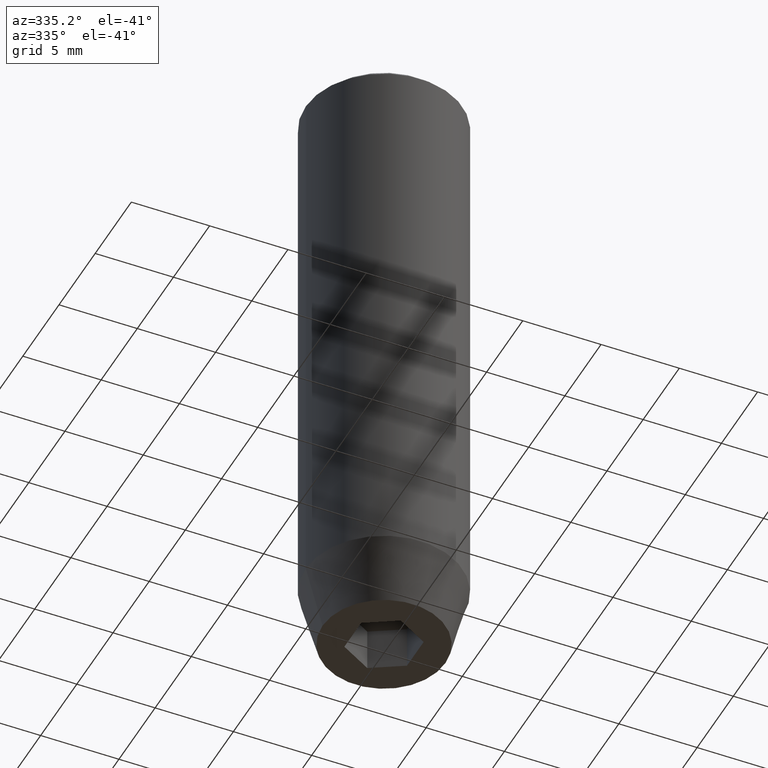
[diagram: clean part render]
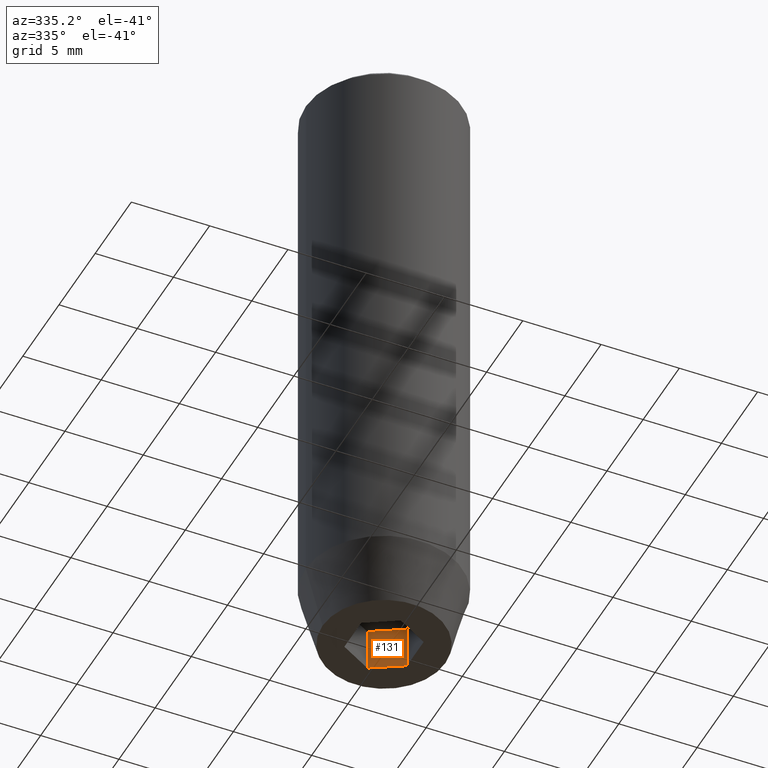
[diagram: same view with one face highlighted and labeled with its STEP entity id]
A machine part, auxiliary view. The second image highlights one B-rep face of the part: STEP entity #131.
In plain terms, the highlighted planar face has unit normal (0.5, 0.866, -0).
Its self-contained STEP definition (entity closure, byte-faithful):
#15 = ORIENTED_EDGE ( 'NONE', *, *, #301, .T. ) ;
#16 = CARTESIAN_POINT ( 'NONE',  ( 2.000000000000000888, 1.154700538379251462, -40.00000000000000000 ) ) ;
#42 = LINE ( 'NONE', #356, #123 ) ;
#62 = DIRECTION ( 'NONE',  ( 0.8660254037844385966, -0.5000000000000001110, 0.000000000000000000 ) ) ;
#99 = ORIENTED_EDGE ( 'NONE', *, *, #391, .F. ) ;
#101 = EDGE_CURVE ( 'NONE', #265, #585, #371, .T. ) ;
#105 = AXIS2_PLACEMENT_3D ( 'NONE', #299, #156, #475 ) ;
#119 = VECTOR ( 'NONE', #62, 1000.000000000000000 ) ;
#123 = VECTOR ( 'NONE', #164, 1000.000000000000000 ) ;
#131 = ADVANCED_FACE ( 'NONE', ( #348 ), #528, .F. ) ;
#151 = DIRECTION ( 'NONE',  ( 0.8660254037844385966, -0.5000000000000001110, 0.000000000000000000 ) ) ;
#156 = DIRECTION ( 'NONE',  ( 0.5000000000000001110, 0.8660254037844385966, -0.000000000000000000 ) ) ;
#164 = DIRECTION ( 'NONE',  ( -0.000000000000000000, -0.000000000000000000, -1.000000000000000000 ) ) ;
#176 = LINE ( 'NONE', #285, #458 ) ;
#179 = VERTEX_POINT ( 'NONE', #434 ) ;
#196 = LINE ( 'NONE', #424, #293 ) ;
#225 = EDGE_LOOP ( 'NONE', ( #236, #366, #99, #15 ) ) ;
#236 = ORIENTED_EDGE ( 'NONE', *, *, #101, .T. ) ;
#265 = VERTEX_POINT ( 'NONE', #445 ) ;
#285 = CARTESIAN_POINT ( 'NONE',  ( 2.000000000000000888, 1.154700538379251462, -37.20000000000000284 ) ) ;
#293 = VECTOR ( 'NONE', #151, 1000.000000000000000 ) ;
#299 = CARTESIAN_POINT ( 'NONE',  ( 1.000000000000000444, 1.732050807568877637, -37.20000000000000284 ) ) ;
#301 = EDGE_CURVE ( 'NONE', #179, #265, #42, .T. ) ;
#326 = EDGE_CURVE ( 'NONE', #453, #585, #176, .T. ) ;
#330 = CARTESIAN_POINT ( 'NONE',  ( 2.000000000000000888, 1.154700538379251462, -37.20000000000000284 ) ) ;
#348 = FACE_OUTER_BOUND ( 'NONE', #225, .T. ) ;
#356 = CARTESIAN_POINT ( 'NONE',  ( 0.000000000000000000, 2.309401076758503812, -37.20000000000000284 ) ) ;
#366 = ORIENTED_EDGE ( 'NONE', *, *, #326, .F. ) ;
#371 = LINE ( 'NONE', #412, #119 ) ;
#391 = EDGE_CURVE ( 'NONE', #179, #453, #196, .T. ) ;
#412 = CARTESIAN_POINT ( 'NONE',  ( 1.000000000000000444, 1.732050807568877637, -40.00000000000000000 ) ) ;
#424 = CARTESIAN_POINT ( 'NONE',  ( 1.000000000000000444, 1.732050807568877637, -37.20000000000000284 ) ) ;
#434 = CARTESIAN_POINT ( 'NONE',  ( 0.000000000000000000, 2.309401076758503812, -37.20000000000000284 ) ) ;
#445 = CARTESIAN_POINT ( 'NONE',  ( 0.000000000000000000, 2.309401076758503812, -40.00000000000000000 ) ) ;
#453 = VERTEX_POINT ( 'NONE', #330 ) ;
#458 = VECTOR ( 'NONE', #468, 1000.000000000000000 ) ;
#468 = DIRECTION ( 'NONE',  ( -0.000000000000000000, -0.000000000000000000, -1.000000000000000000 ) ) ;
#475 = DIRECTION ( 'NONE',  ( -0.8660254037844385966, 0.5000000000000001110, 0.000000000000000000 ) ) ;
#528 = PLANE ( 'NONE',  #105 ) ;
#585 = VERTEX_POINT ( 'NONE', #16 ) ;